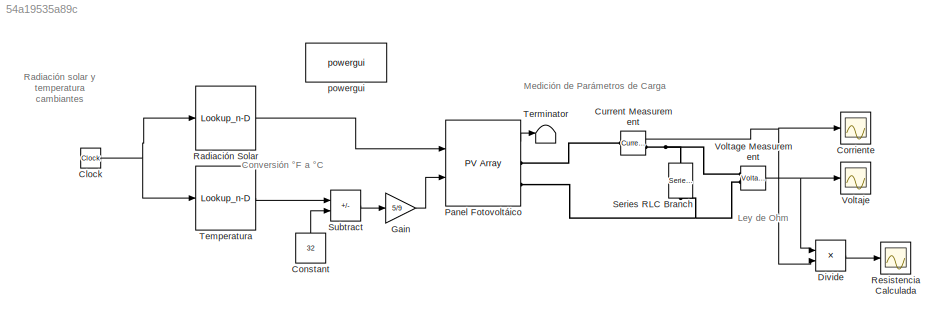
MODEL slx_54a19535a89c
KIND model
CONFIG AbsTol = auto
CONFIG EnableMultiTasking = off
CONFIG FixedStep = auto
CONFIG MaxStep = auto
CONFIG MinStep = auto
CONFIG RelTol = 1e-3
CONFIG SampleTimeConstraint = Unconstrained
CONFIG SolverName = VariableStepAuto
CONFIG StartTime = 0.0
CONFIG StopTime = 1435
BLOCK [Clock] Clock
BLOCK [Constant] Constant
  NameLocation = right
  Value = 32
BLOCK [Scope] Corriente
  Floating = off
  NumInputPorts = 1
  Ports = [1]
  ScopeSpecificationString = Simulink.scopes.TimeScopeBlockCfg('CurrentConfiguration', extmgr.ConfigurationSet(extmgr.Configuration('Core','General UI',true),extmgr.Configuration('Core','Source UI',true),extmgr.Configuration('Sources','WiredSimulink',true),extmgr.Configuration('Visuals','Time Domain',true,'SerializedDisplays',{struct('MinYLimReal','-1.00000','MaxYLimReal','1.00000','YLabelReal','','MinYLimMag','0.00000','MaxY...<+1423ch>
BLOCK [Reference] Current Measurement  REF=spsCurrentMeasurementLib/Current Measurement
  Ports = [0, 1, 0, 0, 0, 1, 1]
  SourceBlock = spsCurrentMeasurementLib/Current Measurement
  SourceProductBaseCode = PS
  SourceType = Current Measurement
  UserDataPersistent = on
BLOCK [Product] Divide
  Inputs = */
  Ports = [2, 1]
BLOCK [Gain] Gain
  Gain = 5/9
BLOCK [Reference] Panel Fotovoltáico  REF=spsPVArrayLib/PV Array
  Ports = [2, 1, 0, 0, 0, 0, 2]
  SourceBlock = spsPVArrayLib/PV Array
  SourceProductBaseCode = PS
  SourceType = PV array
BLOCK [Lookup_n-D] Radiación Solar
  BreakpointsForDimension1 = tiempo
  InputPortMap = u0
  InternalRulePriority = Speed
  NumberOfTableDimensions = 1
  Ports = [1, 1]
  RndMeth = Simplest
  Table = radiacion_solar
BLOCK [Scope] Resistencia Calculada
  Floating = off
  NumInputPorts = 1
  Ports = [1]
  ScopeSpecificationString = Simulink.scopes.TimeScopeBlockCfg('CurrentConfiguration', extmgr.ConfigurationSet(extmgr.Configuration('Core','General UI',true),extmgr.Configuration('Core','Source UI',true),extmgr.Configuration('Sources','WiredSimulink',true,'DataLoggingVariableName','ScopeData2'),extmgr.Configuration('Visuals','Time Domain',true,'SerializedDisplays',{struct('MinYLimReal','4.00000','MaxYLimReal','6.00000','YLabe...<+1447ch>
BLOCK [Reference] Series RLC Branch  REF=spsSeriesRLCBranchLib/Series RLC Branch
  NameLocation = left
  Ports = [0, 0, 0, 0, 0, 1, 1]
  SourceBlock = spsSeriesRLCBranchLib/Series RLC Branch
  SourceProductBaseCode = PS
  SourceType = Series RLC Branch
BLOCK [Sum] Subtract
  IconShape = rectangular
  Inputs = +-
  Ports = [2, 1]
BLOCK [Lookup_n-D] Temperatura
  BreakpointsForDimension1 = tiempo_temperatura
  InputPortMap = u0
  InternalRulePriority = Speed
  NumberOfTableDimensions = 1
  Ports = [1, 1]
  RndMeth = Simplest
  Table = temperatura
BLOCK [Terminator] Terminator
BLOCK [Reference] Voltage Measurement  REF=spsVoltageMeasurementLib/Voltage Measurement
  Ports = [0, 1, 0, 0, 0, 2]
  SourceBlock = spsVoltageMeasurementLib/Voltage Measurement
  SourceProductBaseCode = PS
  SourceType = Voltage Measurement
  UserDataPersistent = on
BLOCK [Scope] Voltaje
  Floating = off
  NumInputPorts = 1
  Ports = [1]
  ScopeSpecificationString = Simulink.scopes.TimeScopeBlockCfg('CurrentConfiguration', extmgr.ConfigurationSet(extmgr.Configuration('Core','General UI',true),extmgr.Configuration('Core','Source UI',true),extmgr.Configuration('Sources','WiredSimulink',true,'DataLoggingVariableName','ScopeData1'),extmgr.Configuration('Visuals','Time Domain',true,'SerializedDisplays',{struct('MinYLimReal','-1.00000','MaxYLimReal','1.00000','YLab...<+1403ch>
BLOCK [Reference] powergui  REF=spspowerguiLib/powergui
  Ports = []
  Priority = 1
  SourceBlock = spspowerguiLib/powergui
  SourceProductBaseCode = PS
  SourceType = PSB option menu block
ANNOTATION (root): Conversión °F a °C
ANNOTATION (root): Ley de Ohm
ANNOTATION (root): Medición de Parámetros de Carga
ANNOTATION (root): Radiación solar y temperatura cambiantes
NET Clock:1 -> Radiación Solar:1, Temperatura:1
LINE Constant:1 -> Subtract:2
NET Current Measurement:1 -> Corriente:1, Divide:2
LINE Divide:1 -> Resistencia Calculada:1
LINE Gain:1 -> Panel Fotovoltáico:2
LINE Panel Fotovoltáico:1 -> Terminator:1
LINE Radiación Solar:1 -> Panel Fotovoltáico:1
LINE Subtract:1 -> Gain:1
LINE Temperatura:1 -> Subtract:1
NET Voltage Measurement:1 -> Divide:1, Voltaje:1
PLINE Current Measurement:LConn1 -- Panel Fotovoltáico:RConn1
PNET net1: Current Measurement:RConn1 -- Series RLC Branch:LConn1 -- Voltage Measurement:LConn1
PNET net2: Panel Fotovoltáico:RConn2 -- Series RLC Branch:RConn1 -- Voltage Measurement:LConn2
note: NET lines group one-source signal fan-out (src -> all destinations, sorted); 1:1 wires keep LINE; PNET lines group multi-terminal physical nets as a canonical sorted terminal list (undirected conserving connections); 2-terminal nets keep the pairwise PLINE form
